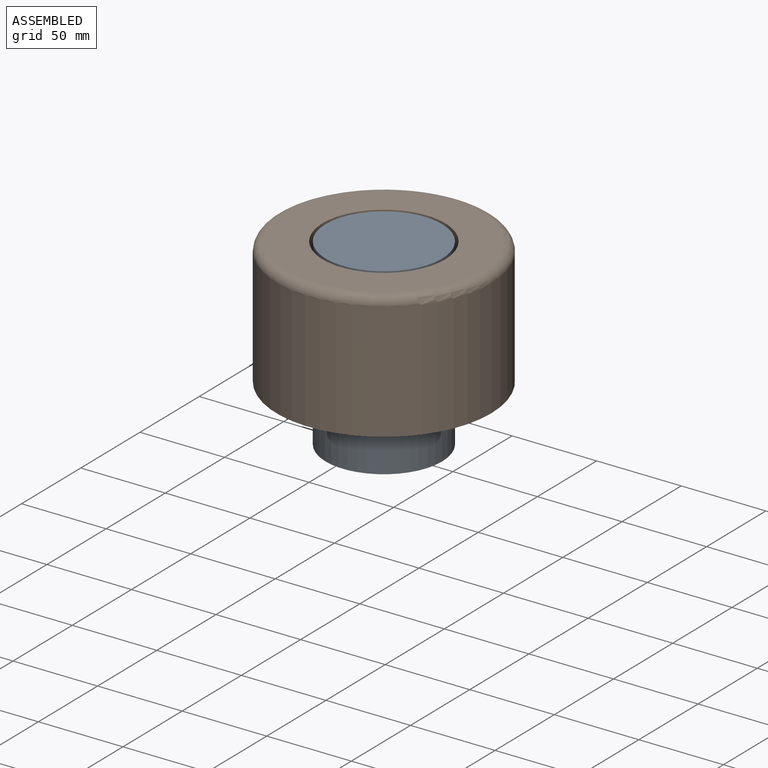
[diagram: assembled view]
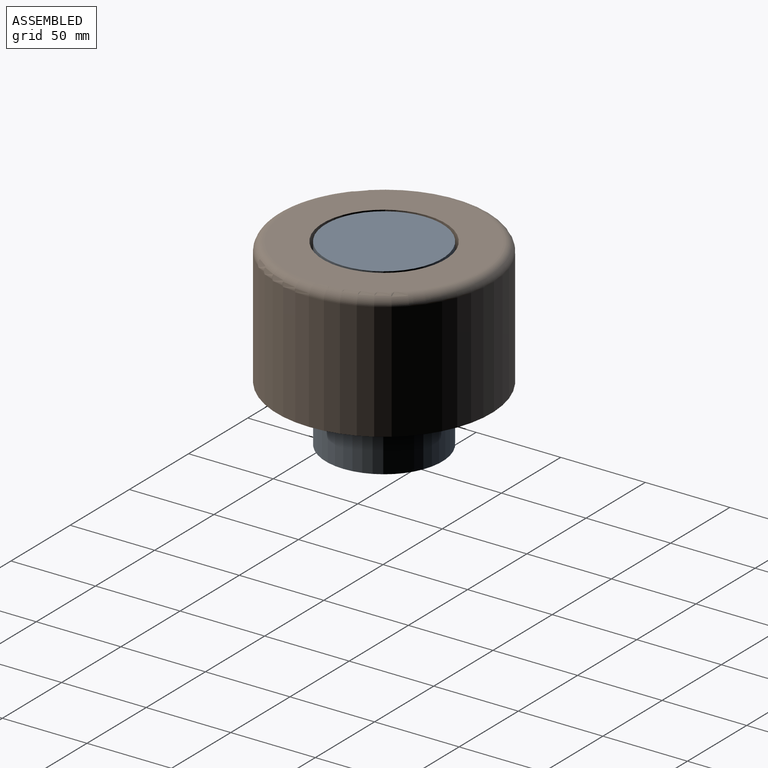
[diagram: assembled view, second angle]
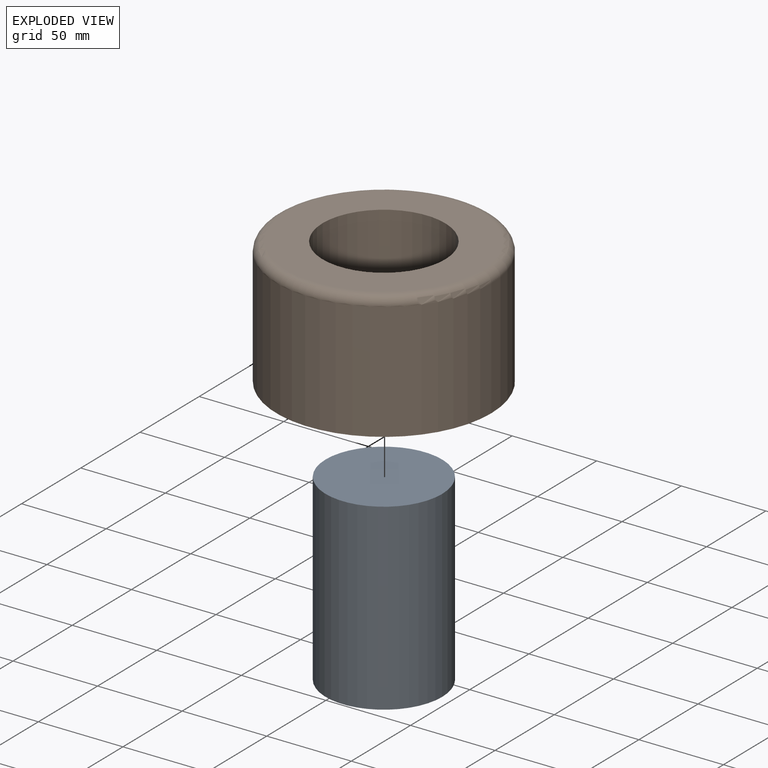
[diagram: exploded view]
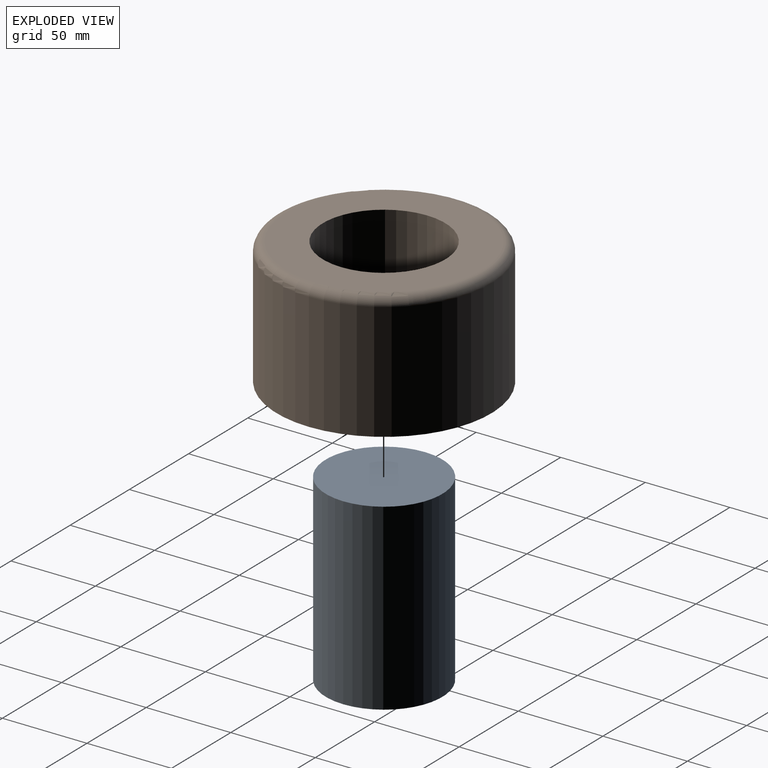
[diagram: exploded view, second angle]
ASSEMBLY  parts=2 mates=2
PART A: 3 faces, bbox 68.9x68.9x108.5 mm
  f0: cylinder r=34.45mm len=108.46mm, axis (0,0,-1), area 23478.4mm2, adj f1,f2
  f1: plane 68.91x68.91mm, normal (0,0,1), area 3729.1mm2, adj f0
  f2: plane 68.91x68.91mm, normal (0,0,-1), area 3729.1mm2, adj f0
PART B: 5 faces, bbox 137.5x137.5x74.9 mm
  f0: cylinder r=36.22mm len=74.93mm, axis (0,0,-1), area 17053.4mm2, adj f2,f3
  f1: cylinder r=63.5mm len=127mm, axis (0,0,-1), area 27693.8mm2, adj f3,f4
  f2: plane 115.96x115.96mm, normal (0,0,1), area 6439.5mm2, adj f0,f4
  f3: plane 127x127mm, normal (0,0,-1), area 8545.8mm2, adj f0,f1
  f4: torus R=57.98mm, axis (0,0,1), area 3349.6mm2, adj f1,f2
PLACE A t=(-36.71,-20.04,1.74)mm fixed
PLACE B t=(-36.71,-20.04,35.26)mm
MATE fastened B.f0 <-> A.f0  axis (0,0,1) through (-36.71,-20.04,110.19)mm
MATE slider B.f1 <-> A.f0  axis (0,0,-1) through (-36.71,-20.04,69.97)mm
